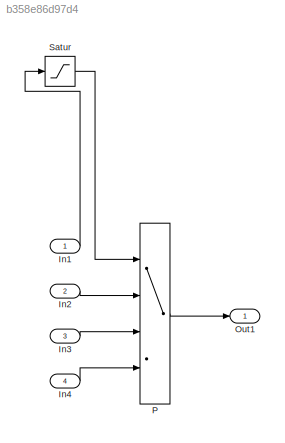
MODEL slx_b358e86d97d4
KIND model
CONFIG AbsTol = auto
CONFIG EnableMultiTasking = off
CONFIG FixedStep = auto
CONFIG MaxStep = auto
CONFIG MinStep = auto
CONFIG RelTol = 1e-3
CONFIG SampleTimeConstraint = Unconstrained
CONFIG Solver = FixedStepDiscrete
CONFIG SolverName = FixedStepDiscrete
CONFIG StartTime = 0.0
CONFIG StopTime = 10.0
BLOCK [Inport] In1
  IconDisplay = Port number
  OutMax = 5
  OutMin = 1
BLOCK [Inport] In2
  IconDisplay = Port number
  Port = 2
  PortDimensions = [2,3]
BLOCK [Inport] In3
  IconDisplay = Port number
  Port = 3
  PortDimensions = [2,3]
BLOCK [Inport] In4
  IconDisplay = Port number
  Port = 4
  PortDimensions = [2,3]
BLOCK [Outport] Out1
  IconDisplay = Port number
BLOCK [MultiPortSwitch] P
  DataPortForDefault = Additional data port
  DataPortIndices = {[1,4],[2,3]}
  DataPortOrder = Specify indices
  InputSameDT = off
  Ports = [4, 1]
  SaturateOnIntegerOverflow = off
BLOCK [Saturate] Satur
  InputPortMap = u0
  LowerLimit = 1
  Ports = [1, 1]
  UpperLimit = 5
LINE In1:1 -> Satur:1
LINE In2:1 -> P:2
LINE In3:1 -> P:3
LINE In4:1 -> P:4
LINE P:1 -> Out1:1
LINE Satur:1 -> P:1
